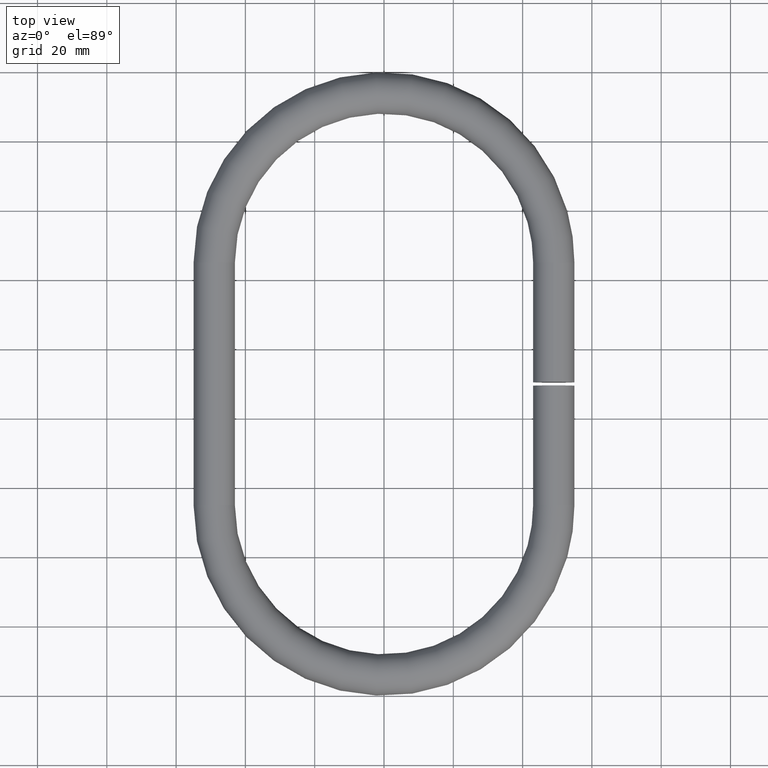
[diagram: clean part render]
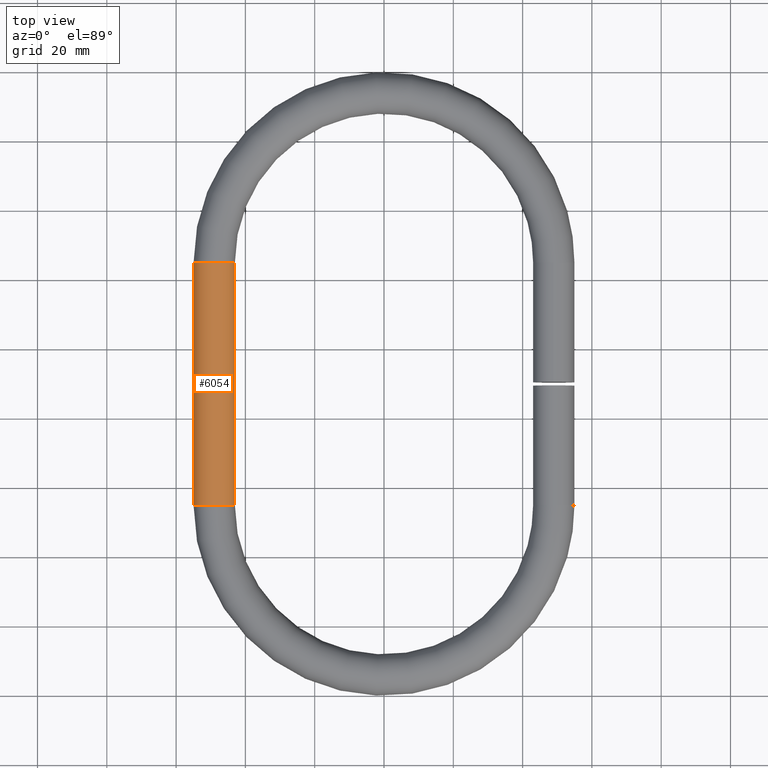
[diagram: same view with one face highlighted and labeled with its STEP entity id]
A machine part, top view. The second image highlights one B-rep face of the part: STEP entity #6054.
In plain terms, the highlighted cylindrical surface (bore or boss wall) has radius 6 mm, axis along (-0, 1, 0).
Its self-contained STEP definition (entity closure, byte-faithful):
#75 = ORIENTED_EDGE ( 'NONE', *, *, #7913, .T. ) ;
#175 = CARTESIAN_POINT ( 'NONE',  ( -49.00000000000000700, 124.9999999999999900, -6.000000000000000900 ) ) ;
#969 = CARTESIAN_POINT ( 'NONE',  ( -49.00000000000000000, 54.99999999999999300, -6.000000000000000900 ) ) ;
#1134 = EDGE_LOOP ( 'NONE', ( #75 ) ) ;
#1228 = DIRECTION ( 'NONE',  ( -1.000000000000000000, 0.0000000000000000000, 0.0000000000000000000 ) ) ;
#1261 = DIRECTION ( 'NONE',  ( -9.912705577010326800E-017, 1.000000000000000000, 0.0000000000000000000 ) ) ;
#2074 = AXIS2_PLACEMENT_3D ( 'NONE', #2929, #9699, #9763 ) ;
#2429 = VERTEX_POINT ( 'NONE', #175 ) ;
#2548 = EDGE_CURVE ( 'NONE', #6204, #6204, #8159, .T. ) ;
#2929 = CARTESIAN_POINT ( 'NONE',  ( -49.00000000000000000, 54.99999999999999300, 0.0000000000000000000 ) ) ;
#3559 = DIRECTION ( 'NONE',  ( 0.0000000000000000000, 0.0000000000000000000, -1.000000000000000000 ) ) ;
#3678 = ORIENTED_EDGE ( 'NONE', *, *, #2548, .F. ) ;
#3692 = CYLINDRICAL_SURFACE ( 'NONE', #5636, 5.999999999999998200 ) ;
#4035 = AXIS2_PLACEMENT_3D ( 'NONE', #5784, #5754, #3559 ) ;
#5636 = AXIS2_PLACEMENT_3D ( 'NONE', #5795, #1261, #1228 ) ;
#5754 = DIRECTION ( 'NONE',  ( 6.123233995736766000E-017, -1.000000000000000000, 0.0000000000000000000 ) ) ;
#5784 = CARTESIAN_POINT ( 'NONE',  ( -49.00000000000000700, 124.9999999999999900, 0.0000000000000000000 ) ) ;
#5795 = CARTESIAN_POINT ( 'NONE',  ( -49.00000000000000000, 54.99999999999999300, 0.0000000000000000000 ) ) ;
#6054 = ADVANCED_FACE ( 'NONE', ( #6293, #7152 ), #3692, .T. ) ;
#6204 = VERTEX_POINT ( 'NONE', #969 ) ;
#6293 = FACE_OUTER_BOUND ( 'NONE', #6649, .T. ) ;
#6649 = EDGE_LOOP ( 'NONE', ( #3678 ) ) ;
#7152 = FACE_OUTER_BOUND ( 'NONE', #1134, .T. ) ;
#7913 = EDGE_CURVE ( 'NONE', #2429, #2429, #9454, .T. ) ;
#8159 = CIRCLE ( 'NONE', #2074, 6.000000000000000900 ) ;
#9454 = CIRCLE ( 'NONE', #4035, 6.000000000000000900 ) ;
#9699 = DIRECTION ( 'NONE',  ( 6.123233995736766000E-017, -1.000000000000000000, 0.0000000000000000000 ) ) ;
#9763 = DIRECTION ( 'NONE',  ( 0.0000000000000000000, 0.0000000000000000000, -1.000000000000000000 ) ) ;